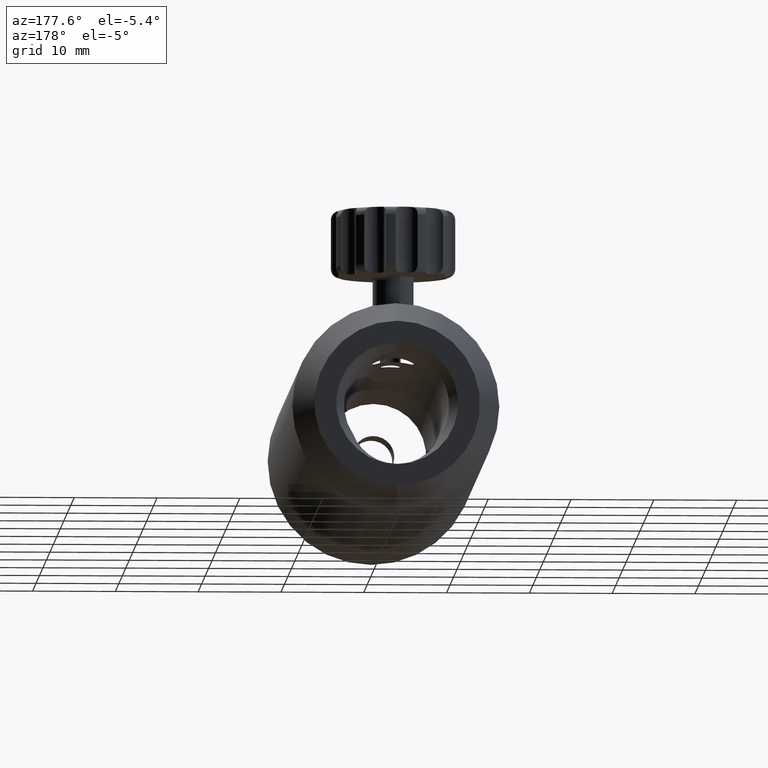
[diagram: clean part render]
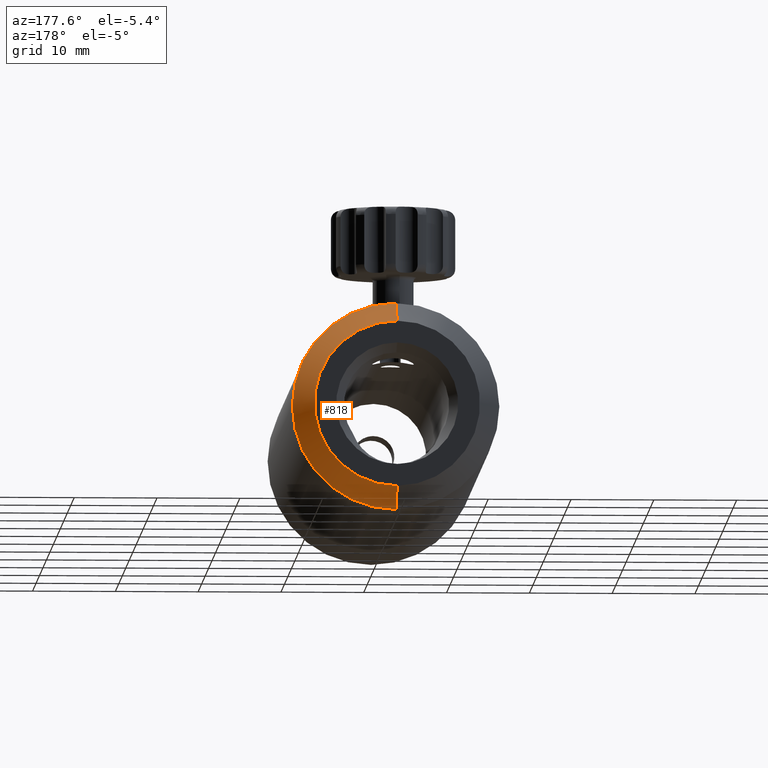
[diagram: same view with one face highlighted and labeled with its STEP entity id]
A machine part, auxiliary view. The second image highlights one B-rep face of the part: STEP entity #818.
In plain terms, the highlighted conical surface has half-angle 32 deg.
Its self-contained STEP definition (entity closure, byte-faithful):
#119 = DIRECTION ( 'NONE',  ( 1.502285461903961200E-018, -1.000000000000000000, -4.971860657915503100E-018 ) ) ;
#174 = ORIENTED_EDGE ( 'NONE', *, *, #3141, .F. ) ;
#215 = ORIENTED_EDGE ( 'NONE', *, *, #3573, .T. ) ;
#234 = CARTESIAN_POINT ( 'NONE',  ( 1.402682666781482000E-014, 62.47173567099246600, 12.49999999999999100 ) ) ;
#402 = AXIS2_PLACEMENT_3D ( 'NONE', #730, #2945, #1812 ) ;
#432 = CARTESIAN_POINT ( 'NONE',  ( 1.121724019454641000E-014, 66.47173567099247300, 10.00052259236270500 ) ) ;
#491 = ORIENTED_EDGE ( 'NONE', *, *, #3288, .F. ) ;
#617 = VECTOR ( 'NONE', #3233, 1000.000000000000100 ) ;
#730 = CARTESIAN_POINT ( 'NONE',  ( 0.0000000000000000000, 66.47173567099247300, 0.0000000000000000000 ) ) ;
#818 = ADVANCED_FACE ( 'NONE', ( #2300 ), #3617, .T. ) ;
#1253 = VERTEX_POINT ( 'NONE', #1361 ) ;
#1257 = AXIS2_PLACEMENT_3D ( 'NONE', #2251, #3013, #3000 ) ;
#1281 = VERTEX_POINT ( 'NONE', #234 ) ;
#1361 = CARTESIAN_POINT ( 'NONE',  ( -1.248399988518539900E-014, 62.47173567099246600, -12.49999999999999100 ) ) ;
#1398 = EDGE_LOOP ( 'NONE', ( #2616, #215, #491, #174 ) ) ;
#1525 = CARTESIAN_POINT ( 'NONE',  ( -9.992529396292632200E-015, 66.47173567099247300, -10.00052259236270500 ) ) ;
#1648 = VERTEX_POINT ( 'NONE', #3514 ) ;
#1696 = CARTESIAN_POINT ( 'NONE',  ( -9.992529396292632200E-015, 66.47173567099247300, -10.00052259236270500 ) ) ;
#1812 = DIRECTION ( 'NONE',  ( -9.992007221626420700E-016, 0.0000000000000000000, -1.000000000000000000 ) ) ;
#2251 = CARTESIAN_POINT ( 'NONE',  ( 0.0000000000000000000, 62.47173567099246600, 0.0000000000000000000 ) ) ;
#2279 = CIRCLE ( 'NONE', #2363, 10.00052259236270500 ) ;
#2300 = FACE_OUTER_BOUND ( 'NONE', #1398, .T. ) ;
#2306 = VERTEX_POINT ( 'NONE', #1696 ) ;
#2353 = CARTESIAN_POINT ( 'NONE',  ( 0.0000000000000000000, 66.47173567099247300, 0.0000000000000000000 ) ) ;
#2363 = AXIS2_PLACEMENT_3D ( 'NONE', #2353, #119, #2609 ) ;
#2534 = VECTOR ( 'NONE', #3439, 1000.000000000000100 ) ;
#2609 = DIRECTION ( 'NONE',  ( -9.992007221626420700E-016, 0.0000000000000000000, -1.000000000000000000 ) ) ;
#2616 = ORIENTED_EDGE ( 'NONE', *, *, #3503, .T. ) ;
#2945 = DIRECTION ( 'NONE',  ( 1.502285461903961200E-018, -1.000000000000000000, -4.971860657915503100E-018 ) ) ;
#3000 = DIRECTION ( 'NONE',  ( -9.992007221626420700E-016, 0.0000000000000000000, -1.000000000000000000 ) ) ;
#3013 = DIRECTION ( 'NONE',  ( 1.502285461903961200E-018, -1.000000000000000000, -4.971860657915503100E-018 ) ) ;
#3141 = EDGE_CURVE ( 'NONE', #2306, #1253, #3146, .T. ) ;
#3146 = LINE ( 'NONE', #1525, #2534 ) ;
#3233 = DIRECTION ( 'NONE',  ( 5.956661149105315200E-016, -0.8480480961564289500, 0.5299192642332000200 ) ) ;
#3288 = EDGE_CURVE ( 'NONE', #1253, #1281, #3638, .T. ) ;
#3320 = LINE ( 'NONE', #432, #617 ) ;
#3439 = DIRECTION ( 'NONE',  ( -5.282217011838582700E-016, -0.8480480961564289500, -0.5299192642332000200 ) ) ;
#3503 = EDGE_CURVE ( 'NONE', #2306, #1648, #2279, .T. ) ;
#3514 = CARTESIAN_POINT ( 'NONE',  ( 1.262203343118063000E-014, 66.47173567099247300, 10.00052259236271500 ) ) ;
#3573 = EDGE_CURVE ( 'NONE', #1648, #1281, #3320, .T. ) ;
#3617 = CONICAL_SURFACE ( 'NONE', #402, 10.00052259236270500, 0.5585053606381802400 ) ;
#3638 = CIRCLE ( 'NONE', #1257, 12.49999999999998600 ) ;